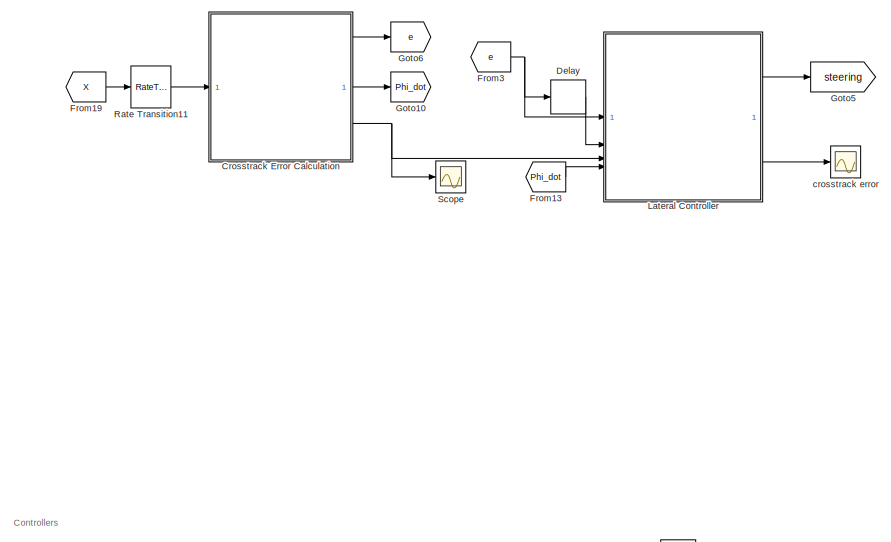
[diagram: root canvas - part 1/3, top left region]
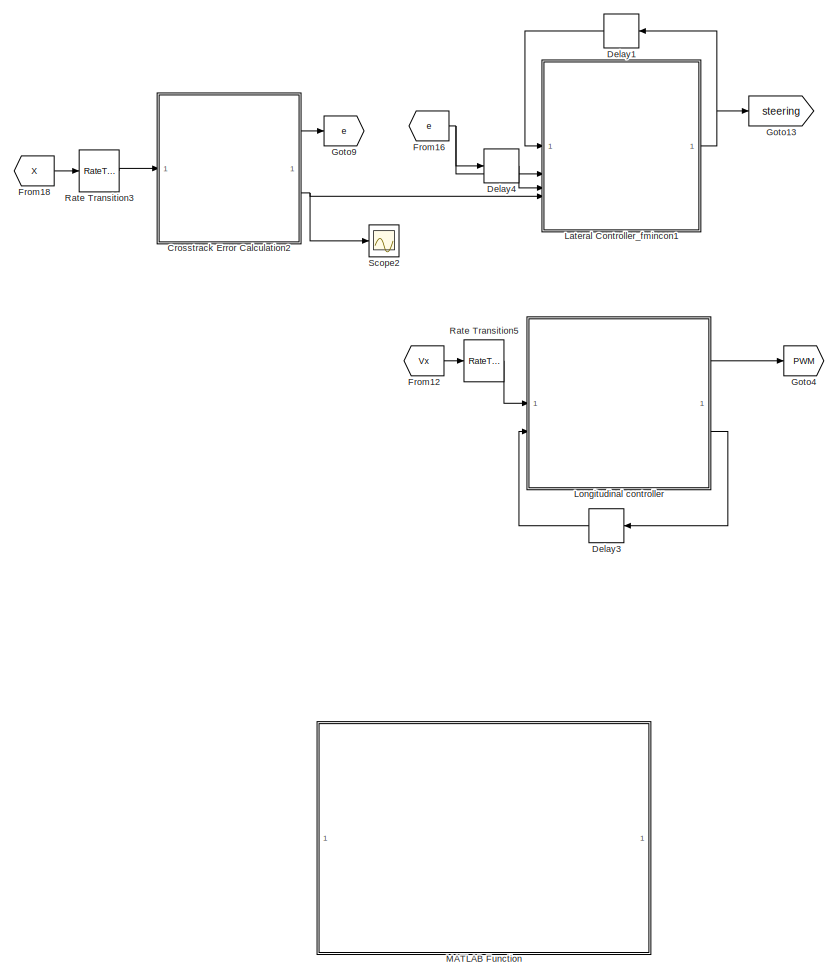
[diagram: root canvas - part 2/3, bottom left region]
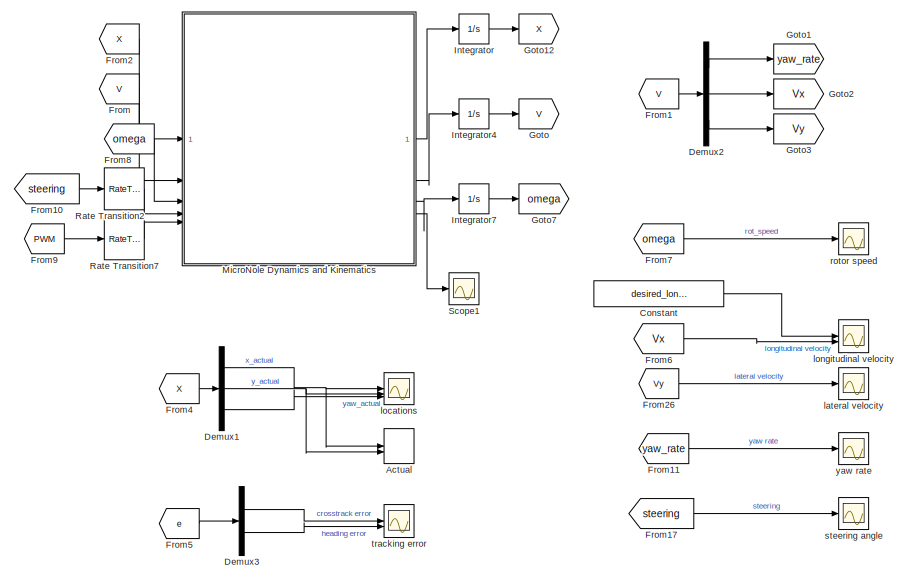
[diagram: root canvas - part 3/3, middle right region]
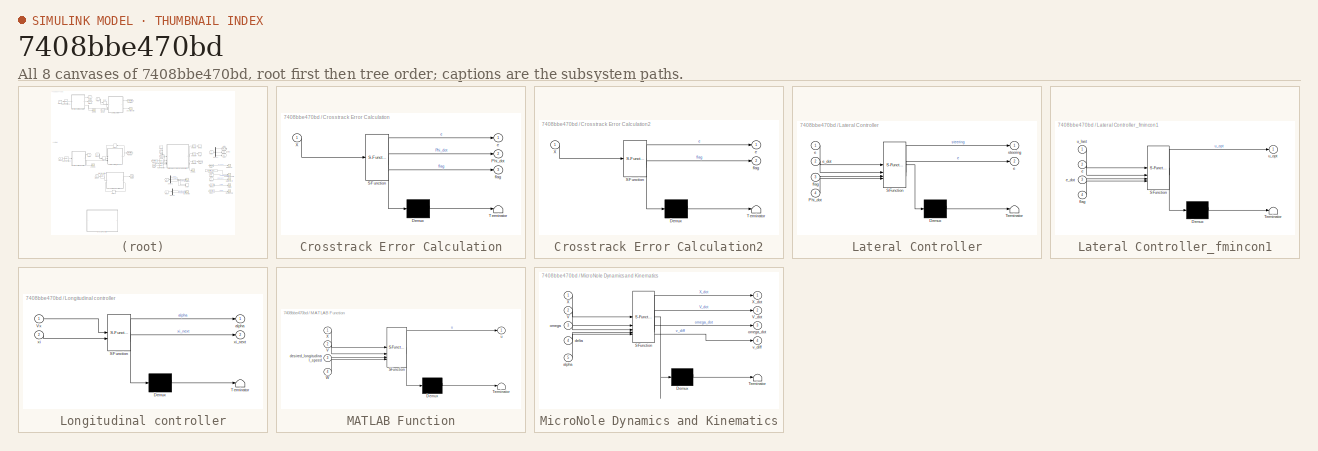
[diagram: thumbnail index - all 8 canvases of the model, root first then tree order]
MODEL slx_7408bbe470bd
KIND model
CONFIG AbsTol = auto
CONFIG EnableMultiTasking = off
CONFIG FixedStep = auto
CONFIG MaxStep = auto
CONFIG MinStep = auto
CONFIG RelTol = 1e-3
CONFIG SampleTimeConstraint = Unconstrained
CONFIG SolverName = VariableStepAuto
CONFIG StartTime = 0.0
CONFIG StopTime = 100
BLOCK [Record] Actual
  CompatibilityTag = XY
  FileSettingsInternal = {"entries":[{"content":{"excelSettings":{"content":{},"type":"Streamout.ExcelSettings"}},"type":"Streamout.FileSettingStorage","uuid":"74785e19-3353-448a-b1e4-8c9a9f0e60d2"}],"packageUris":["http://schema.mathworks.com/mf0/streamout_blocks/R2020a"],"version":"1.0"}
  Layout = [1 1]
  SignalsInternal = {"entries":[{"content":{"signals":[{"content":{"blockPath":["microNole_MPC2021/Actual"],"channel":[],"dimensions":[1],"domain":"microNole_MPC2021/Actual","lineColor":"#a2142f","plots":[1],"port":1,"sid":[""],"signalID":1557,"signalName":"x_actual"},"type":"RecordBlkView.Signal","uuid":"f191aebf-62f9-445e-8cf5-1f0d9c420840"},{"content":{"blockPath":["microNole_MPC2021/Actual"],"channel":[],"dimensi...<+393ch>
  VisualizationBindings = {"xyplotplugin":{"info":[{"series":[{"bindingParametersList":[{"parameter":"X-Axis","signalID":1557,"signalName":"x_actual"},{"parameter":"Y-Axis","signalID":1561,"signalName":"y_actual"}],"seriesID":12829}],"subplotID":1}]}}
  st = -1
BLOCK [Constant] Constant
  Value = desired_longitudinal_speed
BLOCK [SubSystem] Crosstrack Error Calculation
  Commented = on
  ErrorFcn = Stateflow.Translate.translate
  PermitHierarchicalResolution = ExplicitOnly
  SFBlockType = MATLAB Function
  TreatAsAtomicUnit = on
BLOCK [Demux] Crosstrack Error Calculation/ Demux 
  Outputs = 1
BLOCK [S-Function] Crosstrack Error Calculation/ SFunction 
  EnableBusSupport = on
  FunctionName = sf_sfun
  Parameters = double_lane_flag,p1,p2,x_boundary
  PortCounts = [1 4]
  SFcnIsStateOwnerBlock = off
  SFunctionDeploymentMode = off
  Tag = Stateflow S-Function 3
BLOCK [Terminator] Crosstrack Error Calculation/ Terminator 
BLOCK [Outport] Crosstrack Error Calculation/Phi_dot
  Port = 2
BLOCK [Inport] Crosstrack Error Calculation/X
BLOCK [Outport] Crosstrack Error Calculation/e
BLOCK [Outport] Crosstrack Error Calculation/flag
  Port = 3
BLOCK [SubSystem] Crosstrack Error Calculation2
  Commented = on
  ErrorFcn = Stateflow.Translate.translate
  PermitHierarchicalResolution = ExplicitOnly
  SFBlockType = MATLAB Function
  TreatAsAtomicUnit = on
BLOCK [Demux] Crosstrack Error Calculation2/ Demux 
  Outputs = 1
BLOCK [S-Function] Crosstrack Error Calculation2/ SFunction 
  EnableBusSupport = on
  FunctionName = sf_sfun
  Parameters = double_lane_flag,p1,p2,x_boundary
  PortCounts = [1 3]
  SFcnIsStateOwnerBlock = off
  SFunctionDeploymentMode = off
  Tag = Stateflow S-Function 6
BLOCK [Terminator] Crosstrack Error Calculation2/ Terminator 
BLOCK [Inport] Crosstrack Error Calculation2/X
BLOCK [Outport] Crosstrack Error Calculation2/e
BLOCK [Outport] Crosstrack Error Calculation2/flag
  Port = 2
BLOCK [Delay] Delay
  Commented = on
  DelayLength = 1
  InitialCondition = [e10; e20]
  InputPortMap = u0
  SampleTime = Ts
BLOCK [Delay] Delay1
  Commented = on
  DelayLength = 1
  InputPortMap = u0
  SampleTime = Ts
BLOCK [Delay] Delay3
  Commented = on
  DelayLength = 1
  InputPortMap = u0
  SampleTime = Ts
BLOCK [Delay] Delay4
  Commented = on
  DelayLength = 1
  InitialCondition = [e10; e20]
  InputPortMap = u0
  SampleTime = Ts
BLOCK [Demux] Demux1
  Outputs = 3
BLOCK [Demux] Demux2
  Outputs = 3
BLOCK [Demux] Demux3
  Outputs = 2
BLOCK [From] From
  GotoTag = V
BLOCK [From] From1
  GotoTag = V
BLOCK [From] From10
  GotoTag = steering
BLOCK [From] From11
  GotoTag = yaw_rate
BLOCK [From] From12
  Commented = on
  GotoTag = Vx
BLOCK [From] From13
  Commented = on
  GotoTag = Phi_dot
BLOCK [From] From16
  Commented = on
  GotoTag = e
BLOCK [From] From17
  GotoTag = steering
BLOCK [From] From18
  Commented = on
  GotoTag = X
BLOCK [From] From19
  Commented = on
  GotoTag = X
BLOCK [From] From2
  GotoTag = X
BLOCK [From] From26
  GotoTag = Vy
BLOCK [From] From3
  Commented = on
  GotoTag = e
BLOCK [From] From4
  GotoTag = X
BLOCK [From] From5
  GotoTag = e
BLOCK [From] From6
  GotoTag = Vx
BLOCK [From] From7
  GotoTag = omega
BLOCK [From] From8
  GotoTag = omega
BLOCK [From] From9
  GotoTag = PWM
BLOCK [Goto] Goto
  GotoTag = V
BLOCK [Goto] Goto1
  GotoTag = yaw_rate
BLOCK [Goto] Goto10
  Commented = on
  GotoTag = Phi_dot
BLOCK [Goto] Goto12
  GotoTag = X
BLOCK [Goto] Goto13
  Commented = on
  GotoTag = steering
BLOCK [Goto] Goto2
  GotoTag = Vx
BLOCK [Goto] Goto3
  GotoTag = Vy
BLOCK [Goto] Goto4
  Commented = on
  GotoTag = PWM
BLOCK [Goto] Goto5
  Commented = on
  GotoTag = steering
BLOCK [Goto] Goto6
  Commented = on
  GotoTag = e
BLOCK [Goto] Goto7
  GotoTag = omega
BLOCK [Goto] Goto9
  Commented = on
  GotoTag = e
BLOCK [Integrator] Integrator
  InitialCondition = X0
BLOCK [Integrator] Integrator4
  InitialCondition = V0
BLOCK [Integrator] Integrator7
  InitialCondition = omegam0
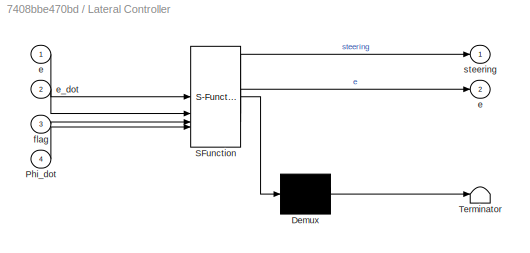
BLOCK [SubSystem] Lateral Controller
  Commented = on
  ErrorFcn = Stateflow.Translate.translate
  PermitHierarchicalResolution = ExplicitOnly
  SFBlockType = MATLAB Function
  TreatAsAtomicUnit = on
BLOCK [Demux] Lateral Controller/ Demux 
  Outputs = 1
BLOCK [S-Function] Lateral Controller/ SFunction 
  EnableBusSupport = on
  FunctionName = sf_sfun
  Parameters = K_mpc_clock,K_mpc_counterclock,L,Theta3,Theta4,Theta5,Theta6,b1,b2,desired_longitudinal_speed
  PortCounts = [4 3]
  SFcnIsStateOwnerBlock = off
  SFunctionDeploymentMode = off
  Tag = Stateflow S-Function 9
BLOCK [Terminator] Lateral Controller/ Terminator 
BLOCK [Inport] Lateral Controller/Phi_dot
  Port = 4
BLOCK [Outport] Lateral Controller/e
  Port = 2
BLOCK [Inport] Lateral Controller/e 
BLOCK [Inport] Lateral Controller/e_dot
  Port = 2
BLOCK [Inport] Lateral Controller/flag
  Port = 3
BLOCK [Outport] Lateral Controller/steering
BLOCK [SubSystem] Lateral Controller_fmincon1
  Commented = on
  ErrorFcn = Stateflow.Translate.translate
  PermitHierarchicalResolution = ExplicitOnly
  SFBlockType = MATLAB Function
  TreatAsAtomicUnit = on
BLOCK [Demux] Lateral Controller_fmincon1/ Demux 
  Outputs = 1
BLOCK [S-Function] Lateral Controller_fmincon1/ SFunction 
  EnableBusSupport = on
  FunctionName = sf_sfun
  Parameters = F1,F2,H1,H2,H_bar,M,b1,b2,b_bar,h,n_input,n_states
  PortCounts = [4 2]
  SFcnIsStateOwnerBlock = off
  SFunctionDeploymentMode = off
  Tag = Stateflow S-Function 7
BLOCK [Terminator] Lateral Controller_fmincon1/ Terminator 
BLOCK [Inport] Lateral Controller_fmincon1/e
  Port = 2
BLOCK [Inport] Lateral Controller_fmincon1/e_dot
  Port = 3
BLOCK [Inport] Lateral Controller_fmincon1/flag
  Port = 4
BLOCK [Inport] Lateral Controller_fmincon1/u_last
BLOCK [Outport] Lateral Controller_fmincon1/u_opt
BLOCK [SubSystem] Longitudinal controller
  Commented = on
  ErrorFcn = Stateflow.Translate.translate
  PermitHierarchicalResolution = ExplicitOnly
  SFBlockType = MATLAB Function
  TreatAsAtomicUnit = on
BLOCK [Demux] Longitudinal controller/ Demux 
  Outputs = 1
BLOCK [S-Function] Longitudinal controller/ SFunction 
  EnableBusSupport = on
  FunctionName = sf_sfun
  Parameters = K1,Ki1,Kp1,Ts,desired_longitudinal_speed
  PortCounts = [2 3]
  SFcnIsStateOwnerBlock = off
  SFunctionDeploymentMode = off
  Tag = Stateflow S-Function 2
BLOCK [Terminator] Longitudinal controller/ Terminator 
BLOCK [Inport] Longitudinal controller/Vx
BLOCK [Outport] Longitudinal controller/alpha
BLOCK [Inport] Longitudinal controller/xi
  Port = 2
BLOCK [Outport] Longitudinal controller/xi_next
  Port = 2
BLOCK [SubSystem] MATLAB Function
  ErrorFcn = Stateflow.Translate.translate
  LibrarySourceBlock = simulink/User-Defined\nFunctions/MATLAB Function
  PermitHierarchicalResolution = ExplicitOnly
  SFBlockType = MATLAB Function
  TreatAsAtomicUnit = on
BLOCK [Demux] MATLAB Function/ Demux 
  Outputs = 1
BLOCK [S-Function] MATLAB Function/ SFunction 
  EnableBusSupport = on
  FunctionName = sf_sfun
  PortCounts = [4 2]
  SFcnIsStateOwnerBlock = off
  SFunctionDeploymentMode = off
  Tag = Stateflow S-Function 4
BLOCK [Terminator] MATLAB Function/ Terminator 
BLOCK [Inport] MATLAB Function/V
  Port = 2
BLOCK [Inport] MATLAB Function/W
  Port = 4
BLOCK [Inport] MATLAB Function/X
BLOCK [Inport] MATLAB Function/desired_longitudinal_speed
  Port = 3
BLOCK [Outport] MATLAB Function/u
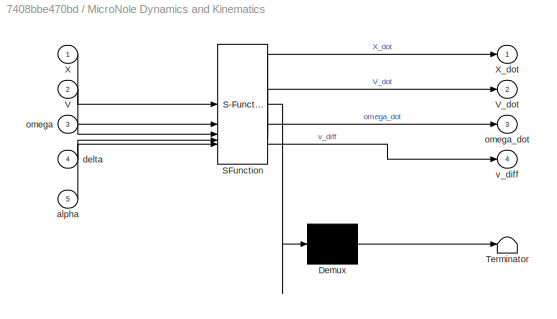
BLOCK [SubSystem] MicroNole Dynamics and Kinematics
  ErrorFcn = Stateflow.Translate.translate
  PermitHierarchicalResolution = ExplicitOnly
  SFBlockType = MATLAB Function
  TreatAsAtomicUnit = on
BLOCK [Demux] MicroNole Dynamics and Kinematics/ Demux 
  Outputs = 1
BLOCK [S-Function] MicroNole Dynamics and Kinematics/ SFunction 
  EnableBusSupport = on
  FunctionName = sf_sfun
  Parameters = L,Rw,Theta1,Theta2,Theta3,Theta4,Theta5,d0,rg,sat_pwm,sat_steering
  PortCounts = [5 5]
  SFcnIsStateOwnerBlock = off
  SFunctionDeploymentMode = off
  Tag = Stateflow S-Function 1
BLOCK [Terminator] MicroNole Dynamics and Kinematics/ Terminator 
BLOCK [Inport] MicroNole Dynamics and Kinematics/V
  Port = 2
BLOCK [Outport] MicroNole Dynamics and Kinematics/V_dot
  Port = 2
BLOCK [Inport] MicroNole Dynamics and Kinematics/X
BLOCK [Outport] MicroNole Dynamics and Kinematics/X_dot
BLOCK [Inport] MicroNole Dynamics and Kinematics/alpha
  Port = 5
BLOCK [Inport] MicroNole Dynamics and Kinematics/delta
  Port = 4
BLOCK [Inport] MicroNole Dynamics and Kinematics/omega
  Port = 3
BLOCK [Outport] MicroNole Dynamics and Kinematics/omega_dot
  Port = 3
BLOCK [Outport] MicroNole Dynamics and Kinematics/v_diff
  Port = 4
BLOCK [RateTransition] Rate Transition11
  Commented = on
  InitialCondition = X0
  OutPortSampleTime = Ts
BLOCK [RateTransition] Rate Transition2
  Integrity = off
  OutPortSampleTime = 0
BLOCK [RateTransition] Rate Transition3
  Commented = on
  InitialCondition = X0
  OutPortSampleTime = Ts
BLOCK [RateTransition] Rate Transition5
  Commented = on
  OutPortSampleTime = Ts
BLOCK [RateTransition] Rate Transition7
  Integrity = off
  OutPortSampleTime = 0
BLOCK [Scope] Scope
  Commented = on
  Floating = off
  NumInputPorts = 1
  ScopeSpecificationString = Simulink.scopes.TimeScopeBlockCfg('CurrentConfiguration', extmgr.ConfigurationSet(extmgr.Configuration('Core','General UI',true),extmgr.Configuration('Core','Source UI',true),extmgr.Configuration('Sources','WiredSimulink',true,'DataLoggingVariableName','ScopeData1'),extmgr.Configuration('Visuals','Time Domain',true,'SerializedDisplays',{struct('MinYLimReal','0.9','MaxYLimReal','1.1','YLabelReal','...<+1387ch>
BLOCK [Scope] Scope1
  Floating = off
  NumInputPorts = 1
  ScopeSpecificationString = Simulink.scopes.TimeScopeBlockCfg('CurrentConfiguration', extmgr.ConfigurationSet(extmgr.Configuration('Core','General UI',true),extmgr.Configuration('Core','Source UI',true),extmgr.Configuration('Sources','WiredSimulink',true,'DataLoggingVariableName','ScopeData1'),extmgr.Configuration('Visuals','Time Domain',true,'SerializedDisplays',{struct('MinYLimReal','-0.03784','MaxYLimReal','0.0042','YLabe...<+1449ch>
BLOCK [Scope] Scope2
  Commented = on
  Floating = off
  NumInputPorts = 1
  ScopeSpecificationString = Simulink.scopes.TimeScopeBlockCfg('CurrentConfiguration', extmgr.ConfigurationSet(extmgr.Configuration('Core','General UI',true),extmgr.Configuration('Core','Source UI',true),extmgr.Configuration('Sources','WiredSimulink',true,'DataLoggingVariableName','ScopeData1'),extmgr.Configuration('Visuals','Time Domain',true,'SerializedDisplays',{struct('MinYLimReal','0.9','MaxYLimReal','1.1','YLabelReal','...<+1387ch>
BLOCK [Scope] crosstrack error
  Commented = on
  Floating = off
  NumInputPorts = 1
  ScopeSpecificationString = Simulink.scopes.TimeScopeBlockCfg('CurrentConfiguration', extmgr.ConfigurationSet(extmgr.Configuration('Core','General UI',true),extmgr.Configuration('Core','Source UI',true),extmgr.Configuration('Sources','WiredSimulink',true,'DataLoggingVariableName','ScopeData2'),extmgr.Configuration('Visuals','Time Domain',true,'SerializedDisplays',{struct('MinYLimReal','-0.33586','MaxYLimReal','0.6348','YLabe...<+1404ch>
BLOCK [Scope] lateral velocity
  Floating = off
  NumInputPorts = 1
  ScopeSpecificationString = Simulink.scopes.TimeScopeBlockCfg('CurrentConfiguration', extmgr.ConfigurationSet(extmgr.Configuration('Core','General UI',true),extmgr.Configuration('Core','Source UI',true),extmgr.Configuration('Sources','WiredSimulink',true,'DataLoggingVariableName','ScopeData3'),extmgr.Configuration('Visuals','Time Domain',true,'SerializedDisplays',{struct('MinYLimReal','-1.60768','MaxYLimReal','1.60357','YLab...<+1469ch>
BLOCK [Scope] locations
  Floating = off
  NumInputPorts = 3
  ScopeSpecificationString = Simulink.scopes.TimeScopeBlockCfg('CurrentConfiguration', extmgr.ConfigurationSet(extmgr.Configuration('Core','General UI',true),extmgr.Configuration('Core','Source UI',true),extmgr.Configuration('Sources','WiredSimulink',true,'DataLoggingVariableName','ScopeData1'),extmgr.Configuration('Visuals','Time Domain',true,'SerializedDisplays',{struct('MinYLimReal','-17.66239','MaxYLimReal','158.96153','Y...<+2776ch>
BLOCK [Scope] longitudinal velocity
  Floating = off
  NumInputPorts = 2
  ScopeSpecificationString = Simulink.scopes.TimeScopeBlockCfg('CurrentConfiguration', extmgr.ConfigurationSet(extmgr.Configuration('Core','General UI',true),extmgr.Configuration('Core','Source UI',true),extmgr.Configuration('Sources','WiredSimulink',true,'DataLoggingVariableName','ScopeData1'),extmgr.Configuration('Visuals','Time Domain',true,'SerializedDisplays',{struct('MinYLimReal','-0.26491','MaxYLimReal','2.38417','YLab...<+1484ch>
BLOCK [Scope] rotor speed
  Floating = off
  NumInputPorts = 1
  ScopeSpecificationString = Simulink.scopes.TimeScopeBlockCfg('CurrentConfiguration', extmgr.ConfigurationSet(extmgr.Configuration('Core','General UI',true),extmgr.Configuration('Core','Source UI',true),extmgr.Configuration('Sources','WiredSimulink',true,'DataLoggingVariableName','ScopeData5'),extmgr.Configuration('Visuals','Time Domain',true,'SerializedDisplays',{struct('MinYLimReal','-235.66813','MaxYLimReal','2121.01314',...<+1446ch>
BLOCK [Scope] steering angle
  Floating = off
  NumInputPorts = 1
  ScopeSpecificationString = Simulink.scopes.TimeScopeBlockCfg('CurrentConfiguration', extmgr.ConfigurationSet(extmgr.Configuration('Core','General UI',true),extmgr.Configuration('Core','Source UI',true),extmgr.Configuration('Sources','WiredSimulink',true,'DataLoggingVariableName','ScopeData1'),extmgr.Configuration('Visuals','Time Domain',true,'SerializedDisplays',{struct('MinYLimReal','-0.3794','MaxYLimReal','0.10723','YLabe...<+1443ch>
BLOCK [Scope] tracking error
  Floating = off
  NumInputPorts = 2
  ScopeSpecificationString = Simulink.scopes.TimeScopeBlockCfg('CurrentConfiguration', extmgr.ConfigurationSet(extmgr.Configuration('Core','General UI',true),extmgr.Configuration('Core','Source UI',true),extmgr.Configuration('Sources','WiredSimulink',true,'DataLoggingVariableName','ScopeData3'),extmgr.Configuration('Visuals','Time Domain',true,'SerializedDisplays',{struct('MinYLimReal','-0.02661','MaxYLimReal','0.2395','YLabe...<+2071ch>
BLOCK [Scope] yaw rate
  Floating = off
  NumInputPorts = 1
  ScopeSpecificationString = Simulink.scopes.TimeScopeBlockCfg('CurrentConfiguration', extmgr.ConfigurationSet(extmgr.Configuration('Core','General UI',true),extmgr.Configuration('Core','Source UI',true),extmgr.Configuration('Sources','WiredSimulink',true,'DataLoggingVariableName','ScopeData2'),extmgr.Configuration('Visuals','Time Domain',true,'SerializedDisplays',{struct('MinYLimReal','-0.05881','MaxYLimReal','0.52927','YLab...<+1460ch>
ANNOTATION (root): Controllers
LINE Constant:1 -> longitudinal velocity:1
LINE Crosstrack Error Calculation2:1 -> Goto9:1
NET Crosstrack Error Calculation2:2 -> Lateral Controller_fmincon1:4, Scope2:1
LINE Crosstrack Error Calculation:1 -> Goto6:1
LINE Crosstrack Error Calculation:2 -> Goto10:1
NET Crosstrack Error Calculation:3 -> Lateral Controller:3, Scope:1
LINE Delay1:1 -> Lateral Controller_fmincon1:1
LINE Delay3:1 -> Longitudinal controller:2
LINE Delay4:1 -> Lateral Controller_fmincon1:3
LINE Delay:1 -> Lateral Controller:2
NET Demux1:1 -> Actual:1, locations:1
NET Demux1:2 -> Actual:2, locations:2
LINE Demux1:3 -> locations:3
LINE Demux2:1 -> Goto1:1
LINE Demux2:2 -> Goto2:1
LINE Demux2:3 -> Goto3:1
LINE Demux3:1 -> tracking error:1
LINE Demux3:2 -> tracking error:2
LINE From10:1 -> Rate Transition2:1
LINE From11:1 -> yaw rate:1
LINE From12:1 -> Rate Transition5:1
LINE From13:1 -> Lateral Controller:4
NET From16:1 -> Delay4:1, Lateral Controller_fmincon1:2
LINE From17:1 -> steering angle:1
LINE From18:1 -> Rate Transition3:1
LINE From19:1 -> Rate Transition11:1
LINE From1:1 -> Demux2:1
LINE From26:1 -> lateral velocity:1
LINE From2:1 -> MicroNole Dynamics and Kinematics:1
NET From3:1 -> Delay:1, Lateral Controller:1
LINE From4:1 -> Demux1:1
LINE From5:1 -> Demux3:1
LINE From6:1 -> longitudinal velocity:2
LINE From7:1 -> rotor speed:1
LINE From8:1 -> MicroNole Dynamics and Kinematics:3
LINE From9:1 -> Rate Transition7:1
LINE From:1 -> MicroNole Dynamics and Kinematics:2
LINE Integrator4:1 -> Goto:1
LINE Integrator7:1 -> Goto7:1
LINE Integrator:1 -> Goto12:1
LINE Lateral Controller:1 -> Goto5:1
LINE Lateral Controller:2 -> crosstrack error:1
NET Lateral Controller_fmincon1:1 -> Delay1:1, Goto13:1
LINE Longitudinal controller:1 -> Goto4:1
LINE Longitudinal controller:2 -> Delay3:1
LINE MicroNole Dynamics and Kinematics:1 -> Integrator:1
LINE MicroNole Dynamics and Kinematics:2 -> Integrator4:1
LINE MicroNole Dynamics and Kinematics:3 -> Integrator7:1
LINE MicroNole Dynamics and Kinematics:4 -> Scope1:1
LINE Rate Transition11:1 -> Crosstrack Error Calculation:1
LINE Rate Transition2:1 -> MicroNole Dynamics and Kinematics:4
LINE Rate Transition3:1 -> Crosstrack Error Calculation2:1
LINE Rate Transition5:1 -> Longitudinal controller:1
LINE Rate Transition7:1 -> MicroNole Dynamics and Kinematics:5
note: NET lines group one-source signal fan-out (src -> all destinations, sorted); 1:1 wires keep LINE
CHART MATLAB Function states=1 transitions=1
  STATE_LABEL 'eML_blk_kernel()'
  STATE_LABEL "SCRIPT:\nfunction u = fcn(X,V,desired_longitudinal_speed,W)\n\n\ncoder.extrinsic('MicroNole_dynamics');\ncoder.extrinsic('MicroNole_kinematics');\n\nfmincon()\n\n"
CHART Crosstrack Error Calculation2 states=1 transitions=1
  STATE_LABEL 'eML_blk_kernel()'
  STATE_LABEL 'SCRIPT:\nfunction [e,flag] = fcn(X,p1,double_lane_flag, x_boundary, p2)\n% for double trajectory: [e,Phi_dot,flag] = fcn(X,p1,p2, x_boundary,double_lane_flag)\n% for single trajectory: [e,Phi_dot,flag] = fcn(X,p1,double_lane_flag)\n\n\n%% crosstrack error calculation\nx = X(1);\ny = X(2);\nomegaz = X(3);\n\n\n% %%%%%%%%%%%% 2. polynomial  %%%%%%%%%%%%\np = p1;\nif double_lane_flag == 1  % if there exists double...<+168ch>'
CHART Lateral Controller_fmincon1 states=1 transitions=1
  STATE_LABEL 'eML_blk_kernel()'
  STATE_LABEL "SCRIPT:\nfunction u_opt  = Lateral_Controller1(u_last,e, e_dot, flag, F1,F2,H_bar,b_bar, M, n_states, n_input,h,H1,H2,b1,b2)\n\nE = [e(1);e_dot(1);e(2);e_dot(2)];\n\n\ncoder.extrinsic('constrained_MPC_quaprog')\ncoder.extrinsic('constrained_MPC_pgdhb')\n%% feedback term: constrained MPC-based controller\n% online optimization\nu_opt = zeros(n_input,1);\n% u_opt(:) = constrained_MPC_quaprog(E,u_last,M,F1,H_ba...<+817ch>"
CHART Lateral Controller states=1 transitions=1
  STATE_LABEL 'eML_blk_kernel()'
  STATE_LABEL 'SCRIPT:\nfunction [steering,e] = fcn(e, e_dot, K_mpc_clock,b1, b2,flag,Phi_dot, Theta5, Theta6, Theta3, Theta4, L,desired_longitudinal_speed, K_mpc_counterclock)\n\nE = [e(1);e_dot(1);e(2);e_dot(2)];\n\n%% controller\nK_mpc = K_mpc_counterclock;\n% 1: counter clockwise; -1: clockwise\nif flag == -1\n    K_mpc = K_mpc_clock;\nend\n    \n% feedforward term\n% the steady error on lateral distance could be vanishe...<+468ch>'
CHART MicroNole Dynamics and Kinematics states=1 transitions=1
  STATE_LABEL 'eML_blk_kernel()'
  STATE_LABEL 'SCRIPT:\nfunction [X_dot, V_dot, omega_dot,v_diff] = fcn(X, V, omega, delta,alpha, Theta2, Theta3, Theta4, L, Rw, rg, Theta1, Theta5,sat_pwm, sat_steering,d0)\n%%\n% States:\n%        - X: [x,y,heading] world frame\n%        - V: [Vx, Vy, yaw rate] car frame\n%        - yaw: car yaw angle\n%        - omega: motor rotation speed\n% Inputs: \n%        - delta: steering angle\n%        - alpha: throttle comman...<+1485ch>'
CHART Longitudinal controller states=1 transitions=1
  STATE_LABEL 'eML_blk_kernel()'
  STATE_LABEL 'SCRIPT:\nfunction [alpha,xi_next] = fcn(Vx, xi, Kp1, Ki1,K1, Ts, desired_longitudinal_speed)\n%% function [alpha,delta] = fcn(eVx, eOmegaz)\n% low_level controller (PID) for yaw rate and longitudinal velocity\n% Inputs:\n%        - eVx: longitudinal velocity error = Vx_desired - Vx\n%        - eOmegaz: yaw rate error = Omegaz_desired - Omegaz\n% Outputs:\n%        - alpha: PWM\n%        - delta: steering a...<+244ch>'
CHART Crosstrack Error Calculation states=1 transitions=1
  STATE_LABEL 'eML_blk_kernel()'
  STATE_LABEL 'SCRIPT:\nfunction [e,Phi_dot,flag] = fcn(X,p1,double_lane_flag, x_boundary, p2)\n% for double trajectory: [e,Phi_dot,flag] = fcn(X,p1,p2, x_boundary,double_lane_flag)\n% for single trajectory: [e,Phi_dot,flag] = fcn(X,p1,double_lane_flag)\n\n\n%% crosstrack error calculation\nx = X(1);\ny = X(2);\nomegaz = X(3);\n\n\n% %%%%%%%%%%%% 2. polynomial  %%%%%%%%%%%%\np = p1;\nif double_lane_flag == 1  % if there exist...<+176ch>'
CHART  states=0 transitions=0
CHART  states=0 transitions=0
CHART  states=0 transitions=0
CHART  states=0 transitions=0
CHART  states=0 transitions=0
CHART  states=0 transitions=0
CHART  states=0 transitions=0
